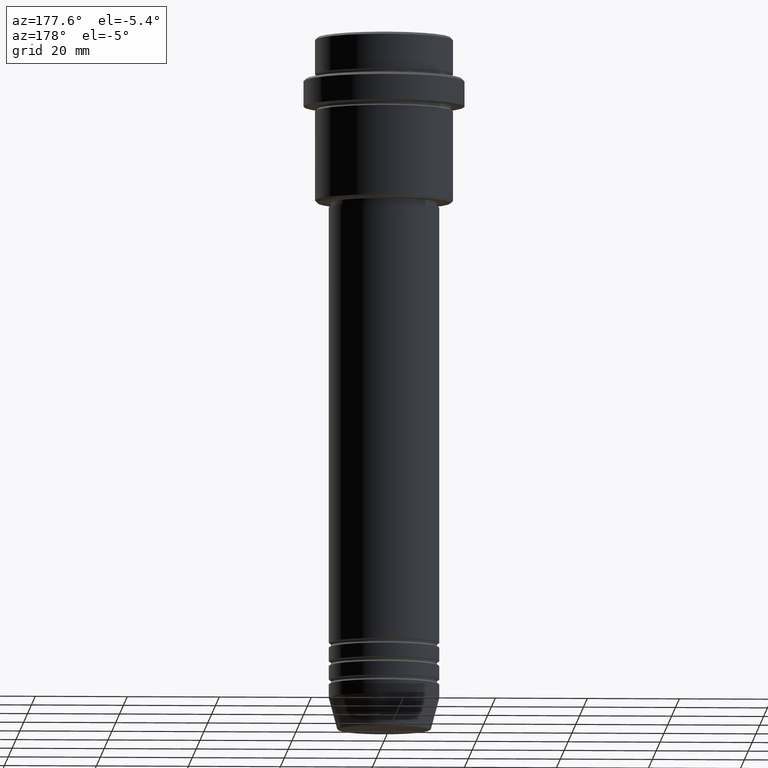
[diagram: clean part render]
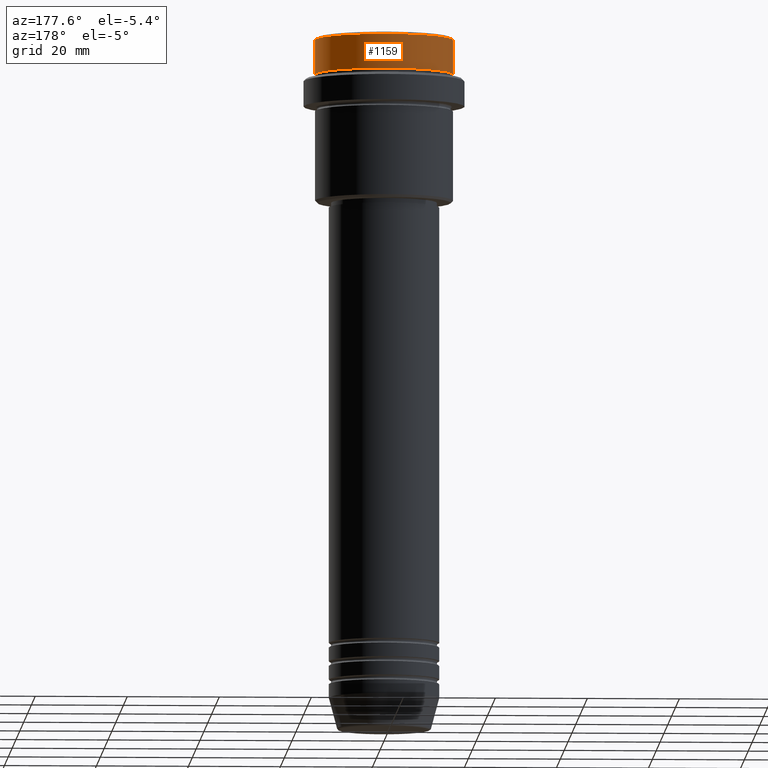
[diagram: same view with one face highlighted and labeled with its STEP entity id]
A machine part, auxiliary view. The second image highlights one B-rep face of the part: STEP entity #1159.
In plain terms, the highlighted cylindrical surface (partial cylindrical patch) has radius 15 mm, axis along (-0, -0, 1).
Its self-contained STEP definition (entity closure, byte-faithful):
#1 = AXIS2_PLACEMENT_3D ( 'NONE', #566, #248, #596 ) ;
#4 = CARTESIAN_POINT ( 'NONE',  ( 0.000000000000000000, 0.000000000000000000, -7.999999999999998224 ) ) ;
#14 = FACE_OUTER_BOUND ( 'NONE', #728, .T. ) ;
#66 = CARTESIAN_POINT ( 'NONE',  ( -15.00000000000000000, 1.836970198721029589E-15, -0.4999999999999970024 ) ) ;
#226 = LINE ( 'NONE', #1098, #506 ) ;
#243 = DIRECTION ( 'NONE',  ( 0.000000000000000000, 0.000000000000000000, -1.000000000000000000 ) ) ;
#248 = DIRECTION ( 'NONE',  ( -0.000000000000000000, -0.000000000000000000, 1.000000000000000000 ) ) ;
#250 = DIRECTION ( 'NONE',  ( 1.000000000000000000, 0.000000000000000000, 0.000000000000000000 ) ) ;
#301 = CIRCLE ( 'NONE', #879, 15.00000000000000000 ) ;
#389 = LINE ( 'NONE', #1010, #1291 ) ;
#439 = EDGE_CURVE ( 'NONE', #781, #945, #389, .T. ) ;
#442 = CARTESIAN_POINT ( 'NONE',  ( 0.000000000000000000, 0.000000000000000000, -0.4999999999999970024 ) ) ;
#445 = CYLINDRICAL_SURFACE ( 'NONE', #1, 15.00000000000000000 ) ;
#448 = DIRECTION ( 'NONE',  ( -0.000000000000000000, -0.000000000000000000, 1.000000000000000000 ) ) ;
#506 = VECTOR ( 'NONE', #1081, 1000.000000000000000 ) ;
#529 = CARTESIAN_POINT ( 'NONE',  ( -15.00000000000000000, 1.836970198721029589E-15, -7.999999999999998224 ) ) ;
#566 = CARTESIAN_POINT ( 'NONE',  ( 0.000000000000000000, 0.000000000000000000, 0.000000000000000000 ) ) ;
#596 = DIRECTION ( 'NONE',  ( 1.000000000000000000, 0.000000000000000000, 0.000000000000000000 ) ) ;
#602 = ORIENTED_EDGE ( 'NONE', *, *, #1409, .F. ) ;
#728 = EDGE_LOOP ( 'NONE', ( #911, #1280, #1325, #602 ) ) ;
#781 = VERTEX_POINT ( 'NONE', #529 ) ;
#791 = EDGE_CURVE ( 'NONE', #800, #781, #840, .T. ) ;
#800 = VERTEX_POINT ( 'NONE', #1331 ) ;
#803 = EDGE_CURVE ( 'NONE', #945, #1145, #301, .T. ) ;
#820 = DIRECTION ( 'NONE',  ( -0.000000000000000000, -0.000000000000000000, 1.000000000000000000 ) ) ;
#840 = CIRCLE ( 'NONE', #1390, 15.00000000000000000 ) ;
#879 = AXIS2_PLACEMENT_3D ( 'NONE', #442, #243, #250 ) ;
#911 = ORIENTED_EDGE ( 'NONE', *, *, #791, .T. ) ;
#945 = VERTEX_POINT ( 'NONE', #66 ) ;
#1010 = CARTESIAN_POINT ( 'NONE',  ( -15.00000000000000000, 1.836970198721029589E-15, 0.000000000000000000 ) ) ;
#1081 = DIRECTION ( 'NONE',  ( -0.000000000000000000, -0.000000000000000000, 1.000000000000000000 ) ) ;
#1098 = CARTESIAN_POINT ( 'NONE',  ( 15.00000000000000000, 0.000000000000000000, 0.000000000000000000 ) ) ;
#1145 = VERTEX_POINT ( 'NONE', #1206 ) ;
#1159 = ADVANCED_FACE ( 'NONE', ( #14 ), #445, .T. ) ;
#1206 = CARTESIAN_POINT ( 'NONE',  ( 15.00000000000000000, 0.000000000000000000, -0.4999999999999970024 ) ) ;
#1280 = ORIENTED_EDGE ( 'NONE', *, *, #439, .T. ) ;
#1291 = VECTOR ( 'NONE', #820, 1000.000000000000000 ) ;
#1303 = DIRECTION ( 'NONE',  ( 1.000000000000000000, 0.000000000000000000, 0.000000000000000000 ) ) ;
#1325 = ORIENTED_EDGE ( 'NONE', *, *, #803, .T. ) ;
#1331 = CARTESIAN_POINT ( 'NONE',  ( 15.00000000000000000, 0.000000000000000000, -7.999999999999998224 ) ) ;
#1390 = AXIS2_PLACEMENT_3D ( 'NONE', #4, #448, #1303 ) ;
#1409 = EDGE_CURVE ( 'NONE', #800, #1145, #226, .T. ) ;